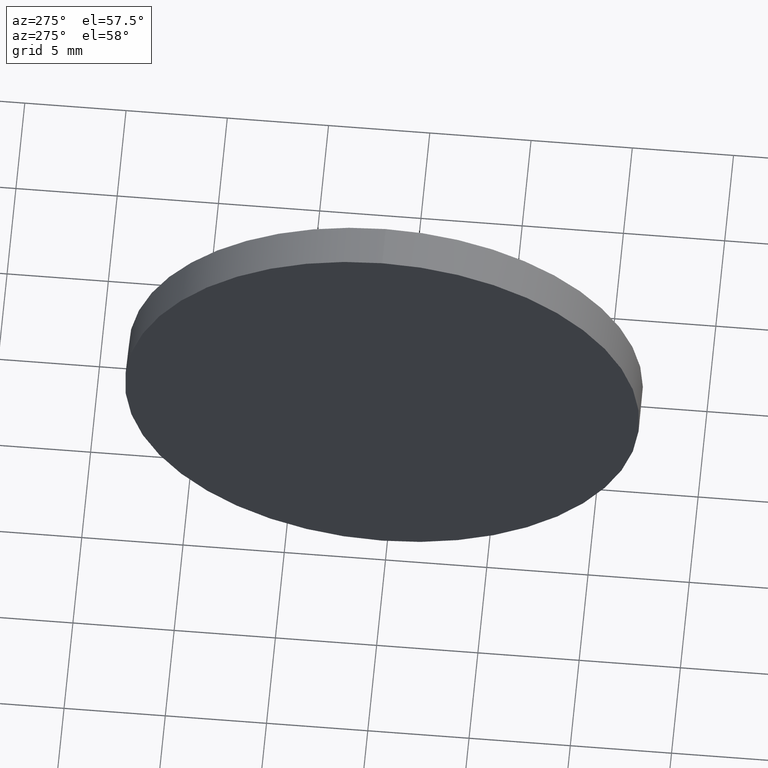
[diagram: clean part render]
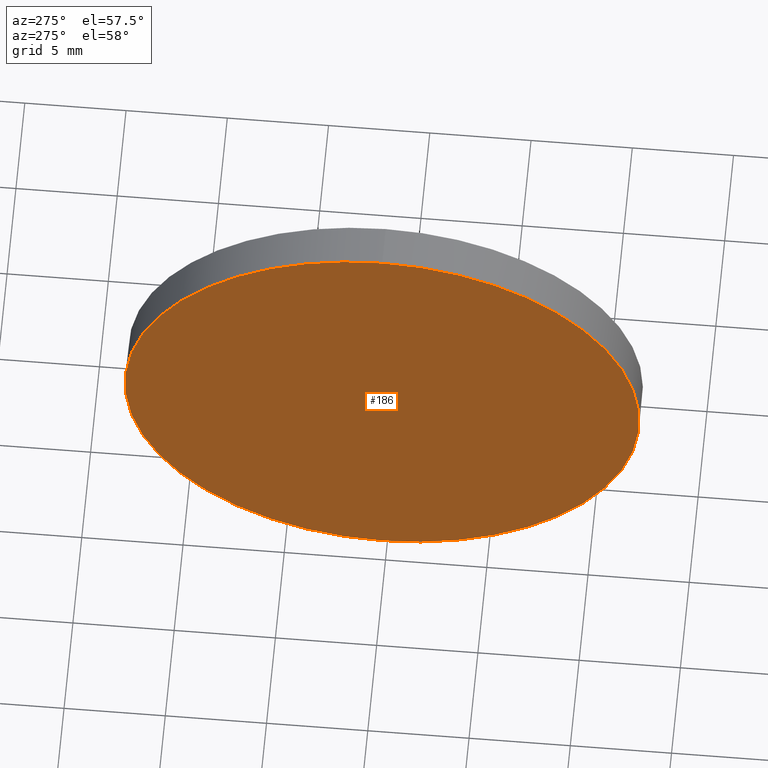
[diagram: same view with one face highlighted and labeled with its STEP entity id]
A machine part, auxiliary view. The second image highlights one B-rep face of the part: STEP entity #186.
In plain terms, the highlighted planar face has unit normal (1, 0, 0).
Its self-contained STEP definition (entity closure, byte-faithful):
#5 = VERTEX_POINT ( 'NONE', #112 ) ;
#6 = CARTESIAN_POINT ( 'NONE',  ( 115.7645554762012000, 65.23355492641219700, 0.0000000000000000000 ) ) ;
#23 = CIRCLE ( 'NONE', #154, 12.70000000000000300 ) ;
#30 = DIRECTION ( 'NONE',  ( 0.0000000000000000000, 0.0000000000000000000, -1.000000000000000000 ) ) ;
#45 = DIRECTION ( 'NONE',  ( 0.0000000000000000000, 0.0000000000000000000, 1.000000000000000000 ) ) ;
#49 = VERTEX_POINT ( 'NONE', #118 ) ;
#50 = AXIS2_PLACEMENT_3D ( 'NONE', #76, #88, #30 ) ;
#58 = ORIENTED_EDGE ( 'NONE', *, *, #183, .T. ) ;
#76 = CARTESIAN_POINT ( 'NONE',  ( 115.7645554762012000, 65.23355492641219700, 0.0000000000000000000 ) ) ;
#77 = FACE_OUTER_BOUND ( 'NONE', #156, .T. ) ;
#88 = DIRECTION ( 'NONE',  ( 1.000000000000000000, 0.0000000000000000000, 0.0000000000000000000 ) ) ;
#90 = ORIENTED_EDGE ( 'NONE', *, *, #150, .T. ) ;
#94 = PLANE ( 'NONE',  #50 ) ;
#107 = DIRECTION ( 'NONE',  ( -1.000000000000000000, -0.0000000000000000000, -0.0000000000000000000 ) ) ;
#112 = CARTESIAN_POINT ( 'NONE',  ( 115.7645554762012000, 65.23355492641219700, -12.70000000000000300 ) ) ;
#118 = CARTESIAN_POINT ( 'NONE',  ( 115.7645554762012000, 65.23355492641219700, 12.70000000000000300 ) ) ;
#146 = CARTESIAN_POINT ( 'NONE',  ( 115.7645554762012000, 65.23355492641219700, 0.0000000000000000000 ) ) ;
#150 = EDGE_CURVE ( 'NONE', #5, #49, #23, .T. ) ;
#154 = AXIS2_PLACEMENT_3D ( 'NONE', #6, #107, #170 ) ;
#156 = EDGE_LOOP ( 'NONE', ( #58, #90 ) ) ;
#169 = CIRCLE ( 'NONE', #171, 12.70000000000000300 ) ;
#170 = DIRECTION ( 'NONE',  ( 0.0000000000000000000, 0.0000000000000000000, 1.000000000000000000 ) ) ;
#171 = AXIS2_PLACEMENT_3D ( 'NONE', #146, #177, #45 ) ;
#177 = DIRECTION ( 'NONE',  ( -1.000000000000000000, -0.0000000000000000000, -0.0000000000000000000 ) ) ;
#183 = EDGE_CURVE ( 'NONE', #49, #5, #169, .T. ) ;
#186 = ADVANCED_FACE ( 'NONE', ( #77 ), #94, .F. ) ;